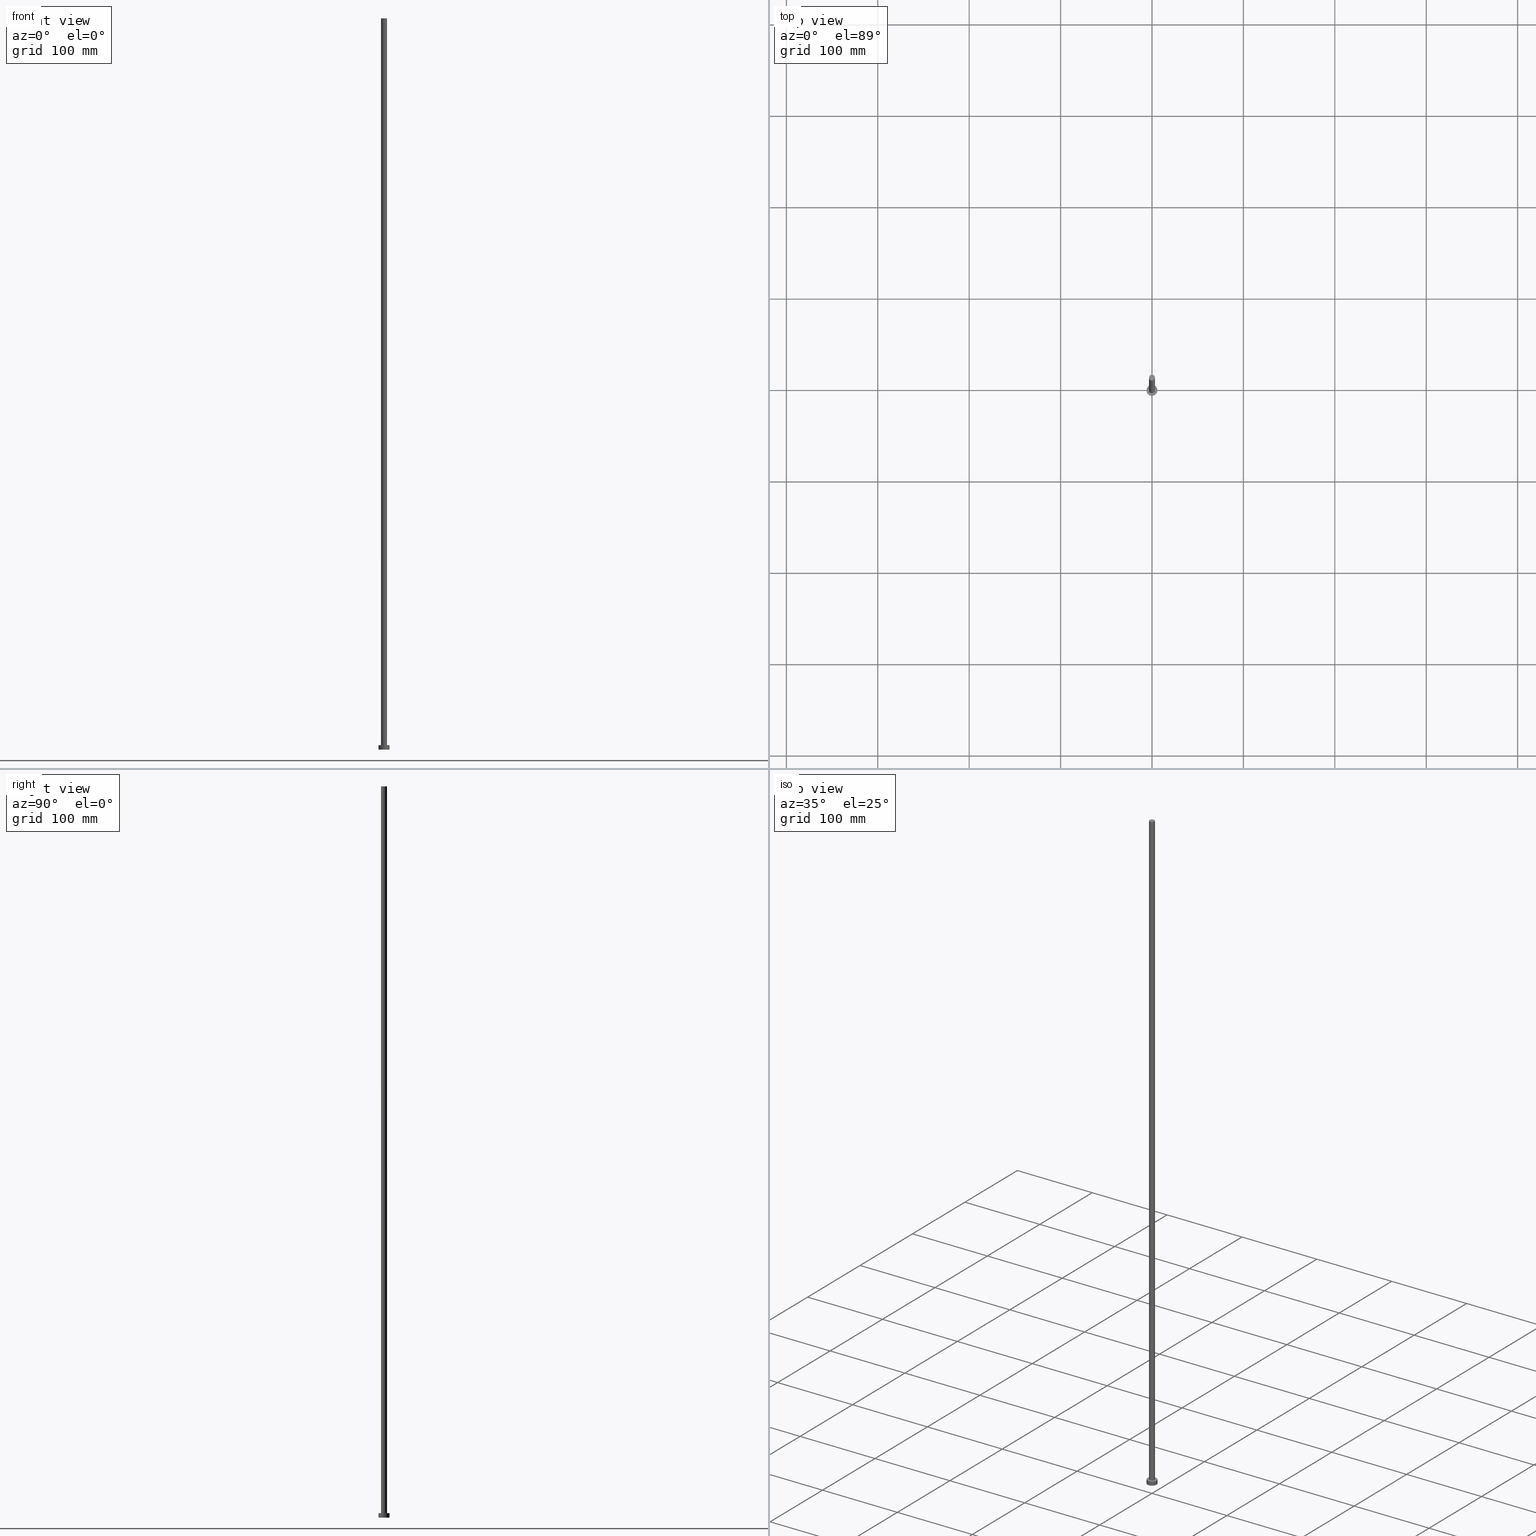
[diagram: canonical four-view strip — front | top / right | iso, engineering-drawing reading convention]
A machine part, canonical four-view strip (front | top / right | iso — engineering-drawing reading convention). The complete STEP part file that produces these views, byte-faithful:
ISO-10303-21;
HEADER;
FILE_DESCRIPTION (( 'STEP AP203' ),
    '1' );
FILE_NAME ('40fd.STEP',
    '2023-02-13T15:16:03',
    ( '' ),
    ( '' ),
    'SwSTEP 2.0',
    'SolidWorks 2019',
    '' );
FILE_SCHEMA (( 'CONFIG_CONTROL_DESIGN' ));
ENDSEC;

DATA;
#1 = LOCAL_TIME ( 16, 16, 3.000000000000000000, #61 ) ;
#2 = CARTESIAN_POINT ( 'NONE',  ( 0.000000000000000000, 0.000000000000000000, 5.000000000000000000 ) ) ;
#3 = PERSON_AND_ORGANIZATION ( #16, #188 ) ;
#4 = CARTESIAN_POINT ( 'NONE',  ( 0.000000000000000000, 0.000000000000000000, 0.000000000000000000 ) ) ;
#5 = EDGE_CURVE ( 'NONE', #15, #72, #33, .T. ) ;
#6 = APPROVAL_DATE_TIME ( #51, #87 ) ;
#7 = DIRECTION ( 'NONE',  ( 1.000000000000000000, 0.000000000000000000, 0.000000000000000000 ) ) ;
#8 = CALENDAR_DATE ( 2023, 13, 2 ) ;
#9 = APPROVAL_ROLE ( '' ) ;
#10 = EDGE_CURVE ( 'NONE', #109, #92, #190, .T. ) ;
#11 = ORIENTED_EDGE ( 'NONE', *, *, #247, .F. ) ;
#12 = PLANE ( 'NONE',  #135 ) ;
#13 = EDGE_LOOP ( 'NONE', ( #192, #71, #113, #37 ) ) ;
#14 = CIRCLE ( 'NONE', #78, 6.000000000000000888 ) ;
#15 = VERTEX_POINT ( 'NONE', #115 ) ;
#16 = PERSON ( 'NEUR�EN�', 'NEUR�EN�', 'NEUR�EN�', ('NEUR�EN�'), ('NEUR�EN�'), ('NEUR�EN�') ) ;
#17 = ORIENTED_EDGE ( 'NONE', *, *, #98, .F. ) ;
#18 = DIRECTION ( 'NONE',  ( 1.000000000000000000, 0.000000000000000000, -0.000000000000000000 ) ) ;
#19 = CIRCLE ( 'NONE', #162, 6.000000000000000888 ) ;
#20 = APPLICATION_PROTOCOL_DEFINITION ( 'international standard', 'config_control_design', 1994, #28 ) ;
#21 = DIRECTION ( 'NONE',  ( -1.000000000000000000, 0.000000000000000000, 0.000000000000000000 ) ) ;
#22 = LOCAL_TIME ( 16, 16, 3.000000000000000000, #221 ) ;
#23 = CARTESIAN_POINT ( 'NONE',  ( 0.000000000000000000, 0.000000000000000000, 800.0000000000000000 ) ) ;
#24 = CARTESIAN_POINT ( 'NONE',  ( -6.000000000000000888, 0.000000000000000000, 5.000000000000000000 ) ) ;
#25 = APPROVAL_STATUS ( 'not_yet_approved' ) ;
#26 = COORDINATED_UNIVERSAL_TIME_OFFSET ( 1, 0, .AHEAD. ) ;
#27 = DIRECTION ( 'NONE',  ( -0.000000000000000000, -0.000000000000000000, -1.000000000000000000 ) ) ;
#28 = APPLICATION_CONTEXT ( 'configuration controlled 3d designs of mechanical parts and assemblies' ) ;
#29 = APPROVAL_ROLE ( '' ) ;
#30 = EDGE_CURVE ( 'NONE', #94, #150, #206, .T. ) ;
#31 = CIRCLE ( 'NONE', #207, 3.250000000000000444 ) ;
#32 = CYLINDRICAL_SURFACE ( 'NONE', #170, 3.250000000000000444 ) ;
#33 = CIRCLE ( 'NONE', #157, 6.000000000000000888 ) ;
#34 = VERTEX_POINT ( 'NONE', #220 ) ;
#35 = CARTESIAN_POINT ( 'NONE',  ( 0.000000000000000000, 0.000000000000000000, 800.0000000000000000 ) ) ;
#36 = APPROVAL_PERSON_ORGANIZATION ( #228, #79, #29 ) ;
#37 = ORIENTED_EDGE ( 'NONE', *, *, #153, .T. ) ;
#38 = ORIENTED_EDGE ( 'NONE', *, *, #153, .F. ) ;
#39 = ADVANCED_FACE ( 'NONE', ( #43 ), #123, .T. ) ;
#40 = LOCAL_TIME ( 16, 16, 3.000000000000000000, #26 ) ;
#41 = ORIENTED_EDGE ( 'NONE', *, *, #89, .T. ) ;
#42 = FACE_OUTER_BOUND ( 'NONE', #249, .T. ) ;
#43 = FACE_OUTER_BOUND ( 'NONE', #55, .T. ) ;
#44 = APPLICATION_CONTEXT ( 'configuration controlled 3d designs of mechanical parts and assemblies' ) ;
#45 = DIRECTION ( 'NONE',  ( 0.000000000000000000, 0.000000000000000000, 1.000000000000000000 ) ) ;
#46 = CC_DESIGN_APPROVAL ( #87, ( #212 ) ) ;
#47 = DIRECTION ( 'NONE',  ( 0.000000000000000000, 0.000000000000000000, 1.000000000000000000 ) ) ;
#48 = CARTESIAN_POINT ( 'NONE',  ( 0.000000000000000000, 0.000000000000000000, 5.000000000000000000 ) ) ;
#49 = APPROVAL_STATUS ( 'not_yet_approved' ) ;
#50 = CARTESIAN_POINT ( 'NONE',  ( -3.250000000000000444, 0.000000000000000000, 800.0000000000000000 ) ) ;
#51 = DATE_AND_TIME ( #121, #22 ) ;
#52 = EDGE_CURVE ( 'NONE', #109, #94, #119, .T. ) ;
#53 = ORIENTED_EDGE ( 'NONE', *, *, #10, .T. ) ;
#54 = AXIS2_PLACEMENT_3D ( 'NONE', #117, #160, #223 ) ;
#55 = EDGE_LOOP ( 'NONE', ( #211, #53 ) ) ;
#56 = ADVANCED_FACE ( 'NONE', ( #195 ), #96, .T. ) ;
#57 = CC_DESIGN_PERSON_AND_ORGANIZATION_ASSIGNMENT ( #182, #84, ( #212 ) ) ;
#58 = DIRECTION ( 'NONE',  ( -0.000000000000000000, -0.000000000000000000, -1.000000000000000000 ) ) ;
#59 = DIRECTION ( 'NONE',  ( 0.000000000000000000, 0.000000000000000000, 1.000000000000000000 ) ) ;
#60 =( LENGTH_UNIT ( ) NAMED_UNIT ( * ) SI_UNIT ( .MILLI., .METRE. ) );
#61 = COORDINATED_UNIVERSAL_TIME_OFFSET ( 1, 0, .AHEAD. ) ;
#62 = CARTESIAN_POINT ( 'NONE',  ( 0.000000000000000000, 0.000000000000000000, 800.0000000000000000 ) ) ;
#63 = DIRECTION ( 'NONE',  ( -1.000000000000000000, 0.000000000000000000, 0.000000000000000000 ) ) ;
#64 = DATE_AND_TIME ( #179, #1 ) ;
#65 = CARTESIAN_POINT ( 'NONE',  ( 0.000000000000000000, 0.000000000000000000, 0.000000000000000000 ) ) ;
#66 = LOCAL_TIME ( 16, 16, 3.000000000000000000, #103 ) ;
#67 = PERSON_AND_ORGANIZATION ( #16, #188 ) ;
#68 = EDGE_LOOP ( 'NONE', ( #172, #131, #189, #11 ) ) ;
#69 = DIRECTION ( 'NONE',  ( -0.000000000000000000, -0.000000000000000000, -1.000000000000000000 ) ) ;
#70 = AXIS2_PLACEMENT_3D ( 'NONE', #2, #45, #241 ) ;
#71 = ORIENTED_EDGE ( 'NONE', *, *, #171, .F. ) ;
#72 = VERTEX_POINT ( 'NONE', #97 ) ;
#73 = ORIENTED_EDGE ( 'NONE', *, *, #5, .F. ) ;
#74 = APPROVAL ( #49, 'NEUR�EN�' ) ;
#75 = DIRECTION ( 'NONE',  ( 0.000000000000000000, 0.000000000000000000, 1.000000000000000000 ) ) ;
#76 = CARTESIAN_POINT ( 'NONE',  ( 3.250000000000000444, 3.980102097228898231E-16, 800.0000000000000000 ) ) ;
#77 = CARTESIAN_POINT ( 'NONE',  ( 0.000000000000000000, 0.000000000000000000, 800.0000000000000000 ) ) ;
#78 = AXIS2_PLACEMENT_3D ( 'NONE', #48, #238, #178 ) ;
#79 = APPROVAL ( #85, 'NEUR�EN�' ) ;
#80 = PERSON_AND_ORGANIZATION_ROLE ( 'design_owner' ) ;
#81 = SHAPE_DEFINITION_REPRESENTATION ( #198, #167 ) ;
#82 = DIRECTION ( 'NONE',  ( -0.000000000000000000, -0.000000000000000000, -1.000000000000000000 ) ) ;
#83 = SECURITY_CLASSIFICATION_LEVEL ( 'unclassified' ) ;
#84 = PERSON_AND_ORGANIZATION_ROLE ( 'design_supplier' ) ;
#85 = APPROVAL_STATUS ( 'not_yet_approved' ) ;
#86 = DIRECTION ( 'NONE',  ( 0.000000000000000000, 0.000000000000000000, 1.000000000000000000 ) ) ;
#87 = APPROVAL ( #25, 'NEUR�EN�' ) ;
#88 = DIRECTION ( 'NONE',  ( 1.000000000000000000, 0.000000000000000000, -0.000000000000000000 ) ) ;
#89 = EDGE_CURVE ( 'NONE', #34, #151, #14, .T. ) ;
#90 = ORIENTED_EDGE ( 'NONE', *, *, #5, .T. ) ;
#91 = VECTOR ( 'NONE', #82, 1000.000000000000000 ) ;
#92 = VERTEX_POINT ( 'NONE', #140 ) ;
#93 = ORIENTED_EDGE ( 'NONE', *, *, #98, .T. ) ;
#94 = VERTEX_POINT ( 'NONE', #197 ) ;
#95 = CC_DESIGN_DATE_AND_TIME_ASSIGNMENT ( #125, #204, ( #209 ) ) ;
#96 = CYLINDRICAL_SURFACE ( 'NONE', #136, 3.250000000000000444 ) ;
#97 = CARTESIAN_POINT ( 'NONE',  ( 6.000000000000000888, 7.347880794884120722E-16, 0.000000000000000000 ) ) ;
#98 = EDGE_CURVE ( 'NONE', #151, #15, #137, .T. ) ;
#99 = PLANE ( 'NONE',  #70 ) ;
#100 = APPROVAL_PERSON_ORGANIZATION ( #163, #87, #9 ) ;
#101 = APPROVAL_DATE_TIME ( #64, #74 ) ;
#102 = PERSON_AND_ORGANIZATION_ROLE ( 'creator' ) ;
#103 = COORDINATED_UNIVERSAL_TIME_OFFSET ( 1, 0, .AHEAD. ) ;
#104 = MECHANICAL_CONTEXT ( 'NONE', #28, 'mechanical' ) ;
#105 = AXIS2_PLACEMENT_3D ( 'NONE', #35, #110, #186 ) ;
#106 = UNCERTAINTY_MEASURE_WITH_UNIT (LENGTH_MEASURE( 1.000000000000000082E-05 ), #60, 'distance_accuracy_value', 'NONE');
#107 = FACE_OUTER_BOUND ( 'NONE', #111, .T. ) ;
#108 = PRODUCT_DEFINITION ( 'NEZN�M�', '', #212, #234 ) ;
#109 = VERTEX_POINT ( 'NONE', #218 ) ;
#110 = DIRECTION ( 'NONE',  ( 0.000000000000000000, 0.000000000000000000, 1.000000000000000000 ) ) ;
#111 = EDGE_LOOP ( 'NONE', ( #73, #230 ) ) ;
#112 = AXIS2_PLACEMENT_3D ( 'NONE', #180, #159, #222 ) ;
#113 = ORIENTED_EDGE ( 'NONE', *, *, #247, .T. ) ;
#114 = CC_DESIGN_PERSON_AND_ORGANIZATION_ASSIGNMENT ( #245, #102, ( #212 ) ) ;
#115 = CARTESIAN_POINT ( 'NONE',  ( -6.000000000000000888, 0.000000000000000000, 0.000000000000000000 ) ) ;
#116 = CIRCLE ( 'NONE', #105, 3.250000000000000444 ) ;
#117 = CARTESIAN_POINT ( 'NONE',  ( 0.000000000000000000, 0.000000000000000000, 5.000000000000000000 ) ) ;
#118 = DIRECTION ( 'NONE',  ( 1.000000000000000000, 0.000000000000000000, 0.000000000000000000 ) ) ;
#119 = LINE ( 'NONE', #76, #244 ) ;
#120 = AXIS2_PLACEMENT_3D ( 'NONE', #181, #27, #63 ) ;
#121 = CALENDAR_DATE ( 2023, 13, 2 ) ;
#122 = CC_DESIGN_PERSON_AND_ORGANIZATION_ASSIGNMENT ( #200, #80, ( #191 ) ) ;
#123 = PLANE ( 'NONE',  #127 ) ;
#124 = PERSON_AND_ORGANIZATION_ROLE ( 'creator' ) ;
#125 = DATE_AND_TIME ( #243, #164 ) ;
#126 = APPROVAL_DATE_TIME ( #183, #79 ) ;
#127 = AXIS2_PLACEMENT_3D ( 'NONE', #77, #47, #18 ) ;
#128 = EDGE_CURVE ( 'NONE', #151, #34, #19, .T. ) ;
#129 = EDGE_LOOP ( 'NONE', ( #38, #193 ) ) ;
#130 = CLOSED_SHELL ( 'NONE', ( #168, #219, #213, #145, #174, #56, #39 ) ) ;
#131 = ORIENTED_EDGE ( 'NONE', *, *, #52, .T. ) ;
#132 = DIRECTION ( 'NONE',  ( 0.000000000000000000, 0.000000000000000000, 1.000000000000000000 ) ) ;
#133 = DIRECTION ( 'NONE',  ( 1.000000000000000000, 0.000000000000000000, 0.000000000000000000 ) ) ;
#134 = PRODUCT_RELATED_PRODUCT_CATEGORY ( 'detail', '', ( #191 ) ) ;
#135 = AXIS2_PLACEMENT_3D ( 'NONE', #184, #132, #88 ) ;
#136 = AXIS2_PLACEMENT_3D ( 'NONE', #23, #242, #21 ) ;
#137 = LINE ( 'NONE', #201, #175 ) ;
#138 = DIRECTION ( 'NONE',  ( 0.000000000000000000, 0.000000000000000000, 1.000000000000000000 ) ) ;
#139 = CALENDAR_DATE ( 2023, 13, 2 ) ;
#140 = CARTESIAN_POINT ( 'NONE',  ( -3.250000000000000444, 0.000000000000000000, 800.0000000000000000 ) ) ;
#141 = PERSON_AND_ORGANIZATION ( #16, #188 ) ;
#142 = LINE ( 'NONE', #50, #91 ) ;
#143 = DATE_AND_TIME ( #139, #40 ) ;
#144 = COORDINATED_UNIVERSAL_TIME_OFFSET ( 1, 0, .AHEAD. ) ;
#145 = ADVANCED_FACE ( 'NONE', ( #177, #216 ), #99, .T. ) ;
#146 = CC_DESIGN_DATE_AND_TIME_ASSIGNMENT ( #143, #227, ( #108 ) ) ;
#147 = CC_DESIGN_APPROVAL ( #74, ( #108 ) ) ;
#148 = DIRECTION ( 'NONE',  ( 1.000000000000000000, 0.000000000000000000, 0.000000000000000000 ) ) ;
#149 = CARTESIAN_POINT ( 'NONE',  ( 6.000000000000000888, 7.347880794884120722E-16, 5.000000000000000000 ) ) ;
#150 = VERTEX_POINT ( 'NONE', #199 ) ;
#151 = VERTEX_POINT ( 'NONE', #24 ) ;
#152 = DIRECTION ( 'NONE',  ( 1.000000000000000000, 0.000000000000000000, 0.000000000000000000 ) ) ;
#153 = EDGE_CURVE ( 'NONE', #150, #94, #31, .T. ) ;
#154 = DIRECTION ( 'NONE',  ( -0.000000000000000000, -0.000000000000000000, -1.000000000000000000 ) ) ;
#155 = MANIFOLD_SOLID_BREP ( 'P�idat vysunut�m3', #130 ) ;
#156 =( GEOMETRIC_REPRESENTATION_CONTEXT ( 3 ) GLOBAL_UNCERTAINTY_ASSIGNED_CONTEXT ( ( #106 ) ) GLOBAL_UNIT_ASSIGNED_CONTEXT ( ( #60, #217, #252 ) ) REPRESENTATION_CONTEXT ( 'NONE', 'WORKASPACE' ) );
#157 = AXIS2_PLACEMENT_3D ( 'NONE', #255, #138, #118 ) ;
#158 = APPROVAL_ROLE ( '' ) ;
#159 = DIRECTION ( 'NONE',  ( -0.000000000000000000, -0.000000000000000000, -1.000000000000000000 ) ) ;
#160 = DIRECTION ( 'NONE',  ( 0.000000000000000000, 0.000000000000000000, 1.000000000000000000 ) ) ;
#161 = PERSON_AND_ORGANIZATION_ROLE ( 'classification_officer' ) ;
#162 = AXIS2_PLACEMENT_3D ( 'NONE', #253, #59, #133 ) ;
#163 = PERSON_AND_ORGANIZATION ( #16, #188 ) ;
#164 = LOCAL_TIME ( 16, 16, 3.000000000000000000, #144 ) ;
#165 = CC_DESIGN_PERSON_AND_ORGANIZATION_ASSIGNMENT ( #67, #124, ( #108 ) ) ;
#166 = DIRECTION ( 'NONE',  ( 0.000000000000000000, 0.000000000000000000, 1.000000000000000000 ) ) ;
#167 = ADVANCED_BREP_SHAPE_REPRESENTATION ( '40fd', ( #155, #173 ), #156 ) ;
#168 = ADVANCED_FACE ( 'NONE', ( #237 ), #32, .T. ) ;
#169 = ORIENTED_EDGE ( 'NONE', *, *, #89, .F. ) ;
#170 = AXIS2_PLACEMENT_3D ( 'NONE', #246, #58, #231 ) ;
#171 = EDGE_CURVE ( 'NONE', #92, #109, #116, .T. ) ;
#172 = ORIENTED_EDGE ( 'NONE', *, *, #10, .F. ) ;
#173 = AXIS2_PLACEMENT_3D ( 'NONE', #65, #166, #148 ) ;
#174 = ADVANCED_FACE ( 'NONE', ( #107 ), #12, .F. ) ;
#175 = VECTOR ( 'NONE', #176, 1000.000000000000000 ) ;
#176 = DIRECTION ( 'NONE',  ( -0.000000000000000000, -0.000000000000000000, -1.000000000000000000 ) ) ;
#177 = FACE_BOUND ( 'NONE', #129, .T. ) ;
#178 = DIRECTION ( 'NONE',  ( 1.000000000000000000, 0.000000000000000000, 0.000000000000000000 ) ) ;
#179 = CALENDAR_DATE ( 2023, 13, 2 ) ;
#180 = CARTESIAN_POINT ( 'NONE',  ( 0.000000000000000000, 0.000000000000000000, 5.000000000000000000 ) ) ;
#181 = CARTESIAN_POINT ( 'NONE',  ( 0.000000000000000000, 0.000000000000000000, 5.000000000000000000 ) ) ;
#182 = PERSON_AND_ORGANIZATION ( #16, #188 ) ;
#183 = DATE_AND_TIME ( #8, #66 ) ;
#184 = CARTESIAN_POINT ( 'NONE',  ( 0.000000000000000000, 0.000000000000000000, 0.000000000000000000 ) ) ;
#185 = ORIENTED_EDGE ( 'NONE', *, *, #128, .T. ) ;
#186 = DIRECTION ( 'NONE',  ( 1.000000000000000000, 0.000000000000000000, 0.000000000000000000 ) ) ;
#187 = CARTESIAN_POINT ( 'NONE',  ( 0.000000000000000000, 0.000000000000000000, 5.000000000000000000 ) ) ;
#188 = ORGANIZATION ( 'NEUR�EN�', 'NEUR�EN�', '' ) ;
#189 = ORIENTED_EDGE ( 'NONE', *, *, #30, .T. ) ;
#190 = CIRCLE ( 'NONE', #240, 3.250000000000000444 ) ;
#191 = PRODUCT ( '40fd', '40fd', '', ( #104 ) ) ;
#192 = ORIENTED_EDGE ( 'NONE', *, *, #52, .F. ) ;
#193 = ORIENTED_EDGE ( 'NONE', *, *, #30, .F. ) ;
#194 = CYLINDRICAL_SURFACE ( 'NONE', #112, 6.000000000000000888 ) ;
#195 = FACE_OUTER_BOUND ( 'NONE', #13, .T. ) ;
#196 = CYLINDRICAL_SURFACE ( 'NONE', #120, 6.000000000000000888 ) ;
#197 = CARTESIAN_POINT ( 'NONE',  ( 3.250000000000000444, 3.980102097228898231E-16, 5.000000000000000000 ) ) ;
#198 = PRODUCT_DEFINITION_SHAPE ( 'NONE', 'NONE',  #108 ) ;
#199 = CARTESIAN_POINT ( 'NONE',  ( -3.250000000000000444, 0.000000000000000000, 5.000000000000000000 ) ) ;
#200 = PERSON_AND_ORGANIZATION ( #16, #188 ) ;
#201 = CARTESIAN_POINT ( 'NONE',  ( -6.000000000000000888, 0.000000000000000000, 5.000000000000000000 ) ) ;
#202 = FACE_OUTER_BOUND ( 'NONE', #235, .T. ) ;
#203 = EDGE_CURVE ( 'NONE', #34, #72, #248, .T. ) ;
#204 = DATE_TIME_ROLE ( 'classification_date' ) ;
#205 = CIRCLE ( 'NONE', #251, 6.000000000000000888 ) ;
#206 = CIRCLE ( 'NONE', #54, 3.250000000000000444 ) ;
#207 = AXIS2_PLACEMENT_3D ( 'NONE', #187, #86, #152 ) ;
#208 = ORIENTED_EDGE ( 'NONE', *, *, #225, .T. ) ;
#209 = SECURITY_CLASSIFICATION ( '', '', #83 ) ;
#210 = ORIENTED_EDGE ( 'NONE', *, *, #203, .T. ) ;
#211 = ORIENTED_EDGE ( 'NONE', *, *, #171, .T. ) ;
#212 = PRODUCT_DEFINITION_FORMATION_WITH_SPECIFIED_SOURCE ( 'LIBOVOLN�', '', #191, .NOT_KNOWN. ) ;
#213 = ADVANCED_FACE ( 'NONE', ( #42 ), #194, .T. ) ;
#214 = DIRECTION ( 'NONE',  ( 0.000000000000000000, 0.000000000000000000, 1.000000000000000000 ) ) ;
#215 = VECTOR ( 'NONE', #69, 1000.000000000000000 ) ;
#216 = FACE_OUTER_BOUND ( 'NONE', #232, .T. ) ;
#217 =( NAMED_UNIT ( * ) PLANE_ANGLE_UNIT ( ) SI_UNIT ( $, .RADIAN. ) );
#218 = CARTESIAN_POINT ( 'NONE',  ( 3.250000000000000444, 3.980102097228898231E-16, 800.0000000000000000 ) ) ;
#219 = ADVANCED_FACE ( 'NONE', ( #202 ), #196, .T. ) ;
#220 = CARTESIAN_POINT ( 'NONE',  ( 6.000000000000000888, 7.347880794884120722E-16, 5.000000000000000000 ) ) ;
#221 = COORDINATED_UNIVERSAL_TIME_OFFSET ( 1, 0, .AHEAD. ) ;
#222 = DIRECTION ( 'NONE',  ( -1.000000000000000000, 0.000000000000000000, 0.000000000000000000 ) ) ;
#223 = DIRECTION ( 'NONE',  ( 1.000000000000000000, 0.000000000000000000, 0.000000000000000000 ) ) ;
#224 = APPLICATION_PROTOCOL_DEFINITION ( 'international standard', 'config_control_design', 1994, #44 ) ;
#225 = EDGE_CURVE ( 'NONE', #72, #15, #205, .T. ) ;
#226 = CC_DESIGN_APPROVAL ( #79, ( #209 ) ) ;
#227 = DATE_TIME_ROLE ( 'creation_date' ) ;
#228 = PERSON_AND_ORGANIZATION ( #16, #188 ) ;
#229 = APPROVAL_PERSON_ORGANIZATION ( #141, #74, #158 ) ;
#230 = ORIENTED_EDGE ( 'NONE', *, *, #225, .F. ) ;
#231 = DIRECTION ( 'NONE',  ( -1.000000000000000000, 0.000000000000000000, 0.000000000000000000 ) ) ;
#232 = EDGE_LOOP ( 'NONE', ( #185, #41 ) ) ;
#233 = ORIENTED_EDGE ( 'NONE', *, *, #203, .F. ) ;
#234 = DESIGN_CONTEXT ( 'detailed design', #44, 'design' ) ;
#235 = EDGE_LOOP ( 'NONE', ( #169, #210, #208, #17 ) ) ;
#236 = CC_DESIGN_PERSON_AND_ORGANIZATION_ASSIGNMENT ( #3, #161, ( #209 ) ) ;
#237 = FACE_OUTER_BOUND ( 'NONE', #68, .T. ) ;
#238 = DIRECTION ( 'NONE',  ( 0.000000000000000000, 0.000000000000000000, 1.000000000000000000 ) ) ;
#239 = DIRECTION ( 'NONE',  ( 1.000000000000000000, 0.000000000000000000, 0.000000000000000000 ) ) ;
#240 = AXIS2_PLACEMENT_3D ( 'NONE', #62, #214, #239 ) ;
#241 = DIRECTION ( 'NONE',  ( 1.000000000000000000, 0.000000000000000000, -0.000000000000000000 ) ) ;
#242 = DIRECTION ( 'NONE',  ( -0.000000000000000000, -0.000000000000000000, -1.000000000000000000 ) ) ;
#243 = CALENDAR_DATE ( 2023, 13, 2 ) ;
#244 = VECTOR ( 'NONE', #154, 1000.000000000000000 ) ;
#245 = PERSON_AND_ORGANIZATION ( #16, #188 ) ;
#246 = CARTESIAN_POINT ( 'NONE',  ( 0.000000000000000000, 0.000000000000000000, 800.0000000000000000 ) ) ;
#247 = EDGE_CURVE ( 'NONE', #92, #150, #142, .T. ) ;
#248 = LINE ( 'NONE', #149, #215 ) ;
#249 = EDGE_LOOP ( 'NONE', ( #233, #250, #93, #90 ) ) ;
#250 = ORIENTED_EDGE ( 'NONE', *, *, #128, .F. ) ;
#251 = AXIS2_PLACEMENT_3D ( 'NONE', #4, #75, #7 ) ;
#252 =( NAMED_UNIT ( * ) SI_UNIT ( $, .STERADIAN. ) SOLID_ANGLE_UNIT ( ) );
#253 = CARTESIAN_POINT ( 'NONE',  ( 0.000000000000000000, 0.000000000000000000, 5.000000000000000000 ) ) ;
#254 = CC_DESIGN_SECURITY_CLASSIFICATION ( #209, ( #212 ) ) ;
#255 = CARTESIAN_POINT ( 'NONE',  ( 0.000000000000000000, 0.000000000000000000, 0.000000000000000000 ) ) ;
ENDSEC;
END-ISO-10303-21;
